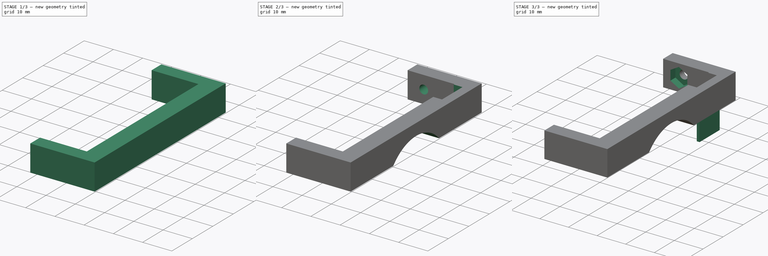
[diagram: build sequence overview — one tinted view per stage of 3, left to right]
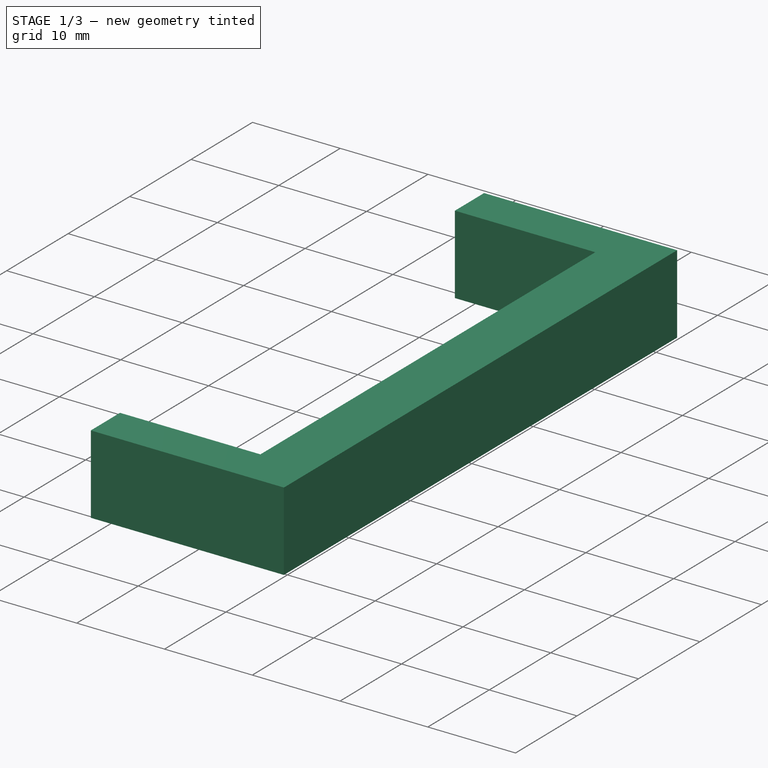
[diagram: stage 1 of 3 — iso view after this stage's code; geometry added in this stage tinted green]
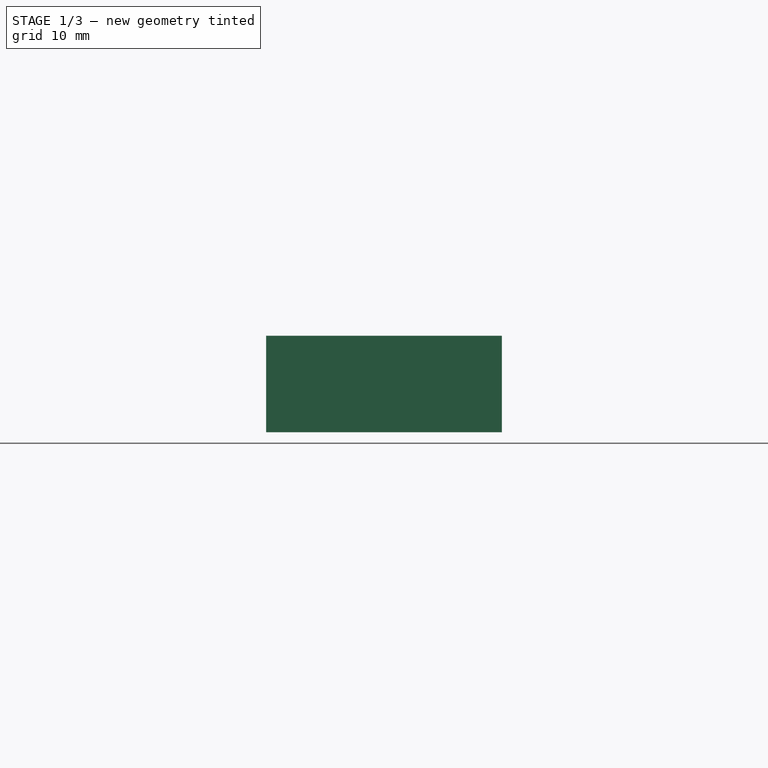
[diagram: stage 1 of 3 — front view after this stage's code; geometry added in this stage tinted green]
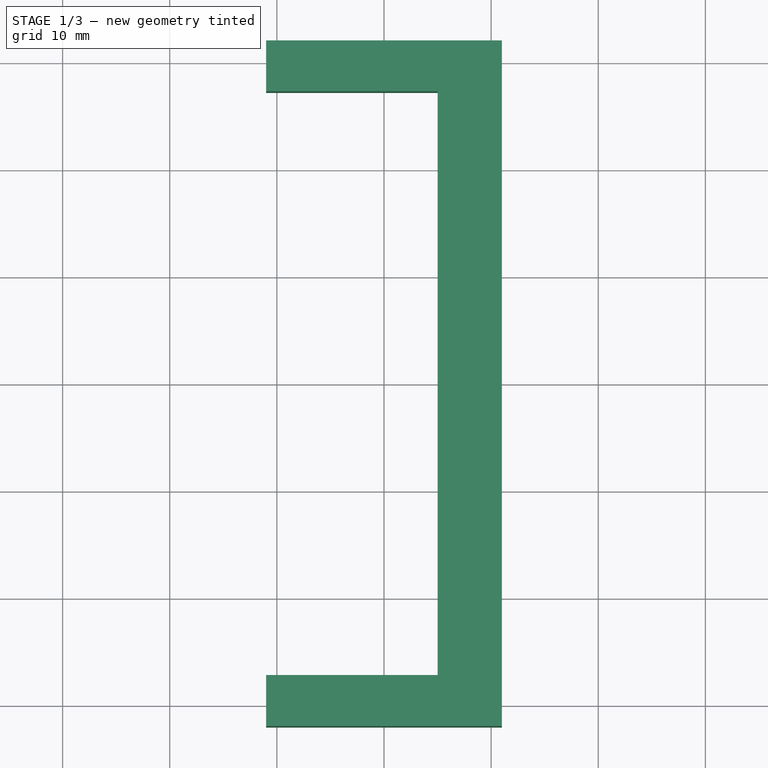
[diagram: stage 1 of 3 — top view after this stage's code; geometry added in this stage tinted green]
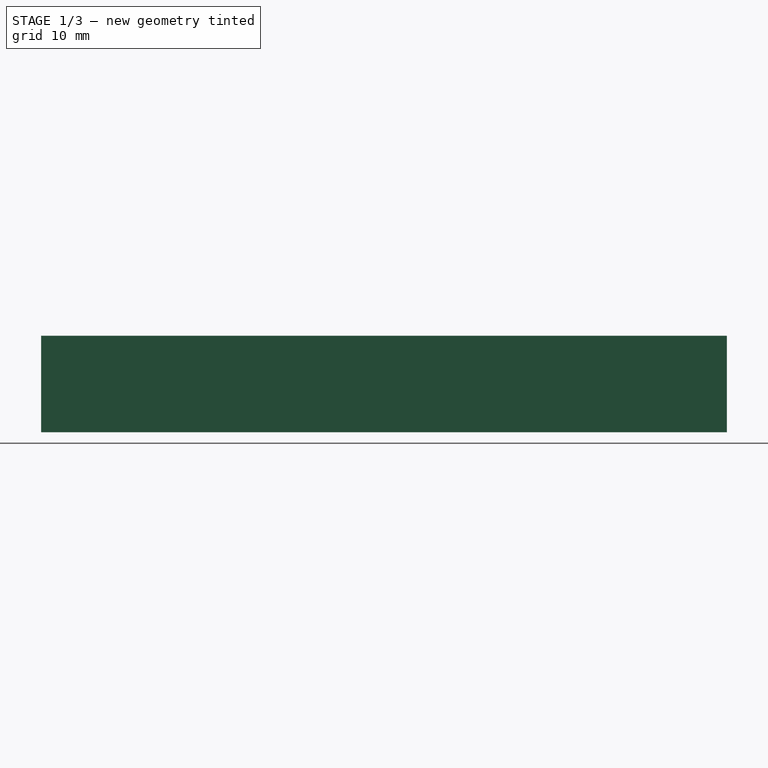
[diagram: stage 1 of 3 — right view after this stage's code; geometry added in this stage tinted green]
FCSTD DOCUMENT  (FreeCAD 0.14R3702 (Git))
Label: Cameraholder_v4
License: CC-BY 3.0
LicenseURL: http://creativecommons.org/licenses/by/3.0/
objects: Sketcher::SketchObject×8, PartDesign::Pocket×5, PartDesign::Pad×2
note: 22 computed .brp shape members not serialized (recipe doc carries the construction recipe); baked Part::Feature solids carry a one-line shape summary decoded from their .brp

FEATURE [Sketcher::SketchObject] Sketch
  sketch-geometry (4):
    g0: LineSegment StartX=-11 StartY=32 StartZ=0 EndX=11 EndY=32 EndZ=0
    g1: LineSegment StartX=11 StartY=32 StartZ=0 EndX=11 EndY=-32 EndZ=0
    g2: LineSegment StartX=11 StartY=-32 StartZ=0 EndX=-11 EndY=-32 EndZ=0
    g3: LineSegment StartX=-11 StartY=-32 StartZ=0 EndX=-11 EndY=32 EndZ=0
  constraints (12):
    c: Coincident(g0,g1)
    c: Coincident(g1,g2)
    c: Coincident(g2,g3)
    c: Coincident(g3,g0)
    c: Horizontal(g0)
    c: Horizontal(g2)
    c: Vertical(g1)
    c: Vertical(g3)
    c: DistanceY(g3) = 64
    c: DistanceX(g0) = 22
    c: Symmetric(g0,g2,g-1)
    c: DistanceX(g-1,g0) = -11
FEATURE [PartDesign::Pad] Pad
  Length = 9
  Length2 = 100
  Sketch = -> Sketch
  Type = 0
FEATURE [Sketcher::SketchObject] Sketch001
  Placement = pos=(0,0,9) rot=(0,0,1;0rad)
  Support = -> Pad [Face6]
  sketch-geometry (4):
    g0: LineSegment StartX=-11 StartY=27.25 StartZ=0 EndX=5 EndY=27.25 EndZ=0
    g1: LineSegment StartX=5 StartY=27.25 StartZ=0 EndX=5 EndY=-27.25 EndZ=0
    g2: LineSegment StartX=5 StartY=-27.25 StartZ=0 EndX=-11 EndY=-27.25 EndZ=0
    g3: LineSegment StartX=-11 StartY=-27.25 StartZ=0 EndX=-11 EndY=27.25 EndZ=0
  constraints (12):
    c: Coincident(g0,g1)
    c: Coincident(g1,g2)
    c: Coincident(g2,g3)
    c: Coincident(g3,g0)
    c: Horizontal(g0)
    c: Horizontal(g2)
    c: Vertical(g1)
    c: Vertical(g3)
    c: Symmetric(g2,g0,g-1)
    c: DistanceX(g-1,g0) = -11
    c: DistanceX(g0) = 16
    c: DistanceY(g3) = 54.5
FEATURE [PartDesign::Pocket] Pocket
  Length = 5
  Sketch = -> Sketch001
  Type = 1
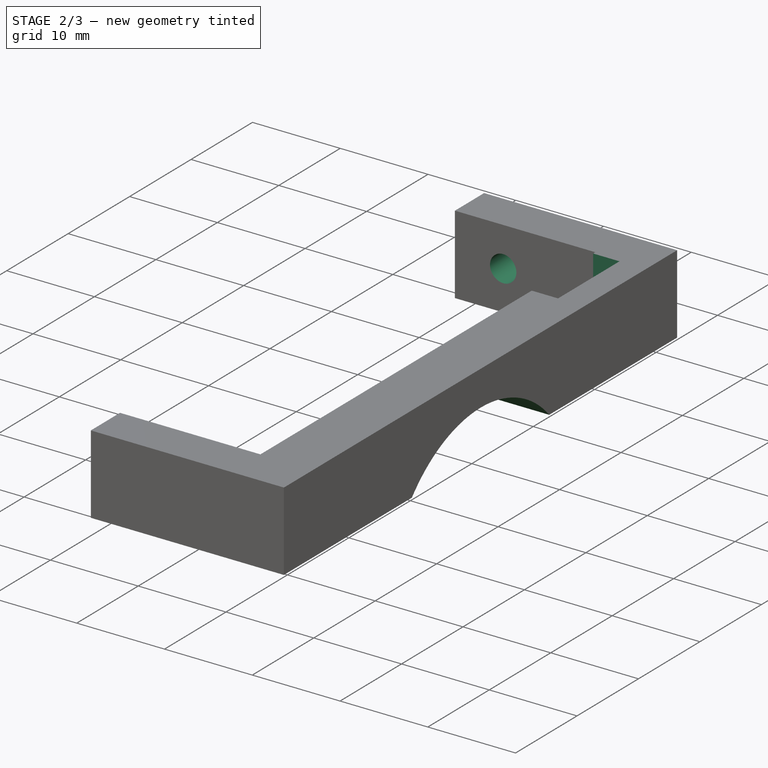
[diagram: stage 2 of 3 — iso view after this stage's code; geometry added in this stage tinted green]
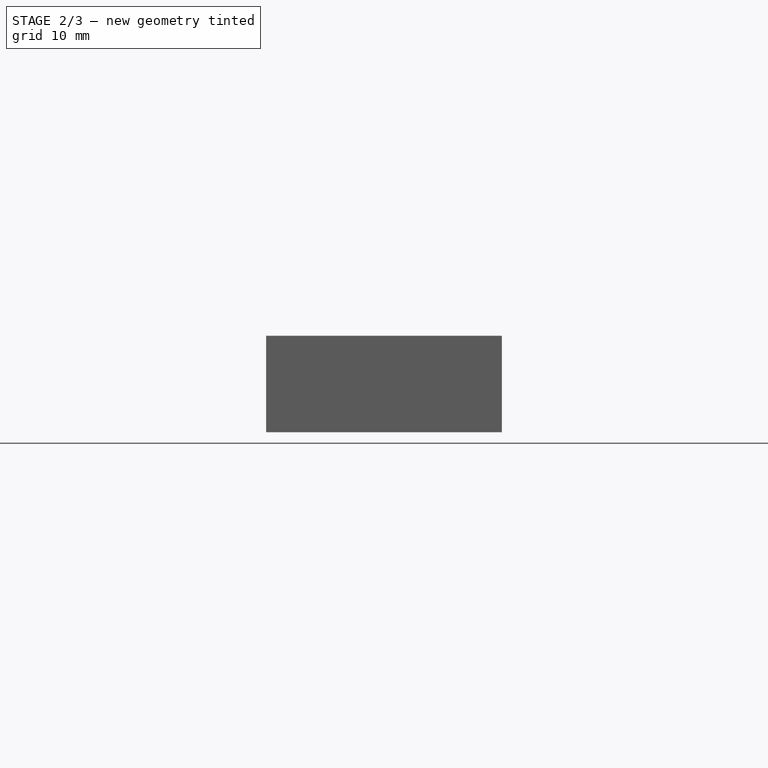
[diagram: stage 2 of 3 — front view after this stage's code; geometry added in this stage tinted green]
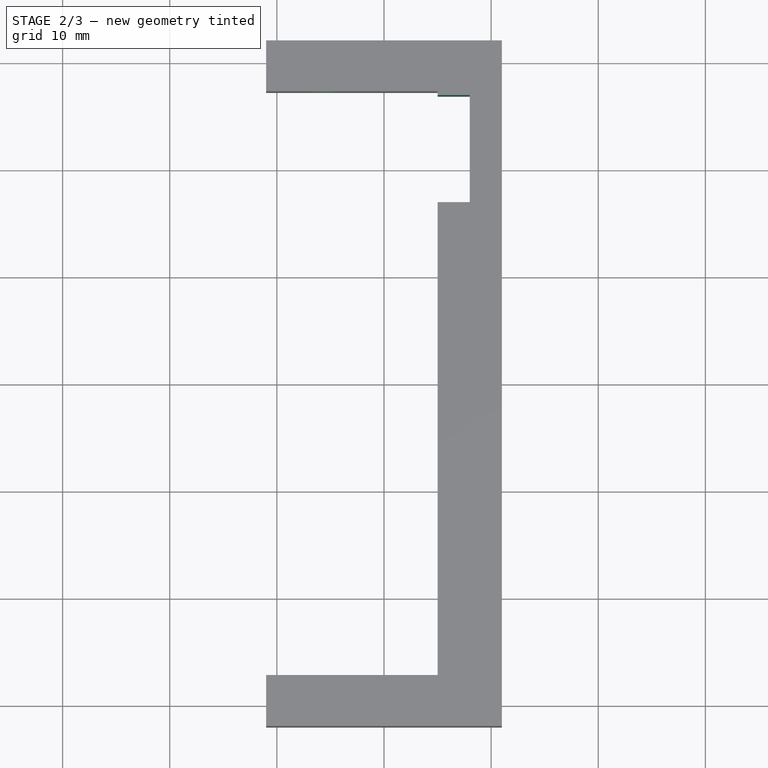
[diagram: stage 2 of 3 — top view after this stage's code; geometry added in this stage tinted green]
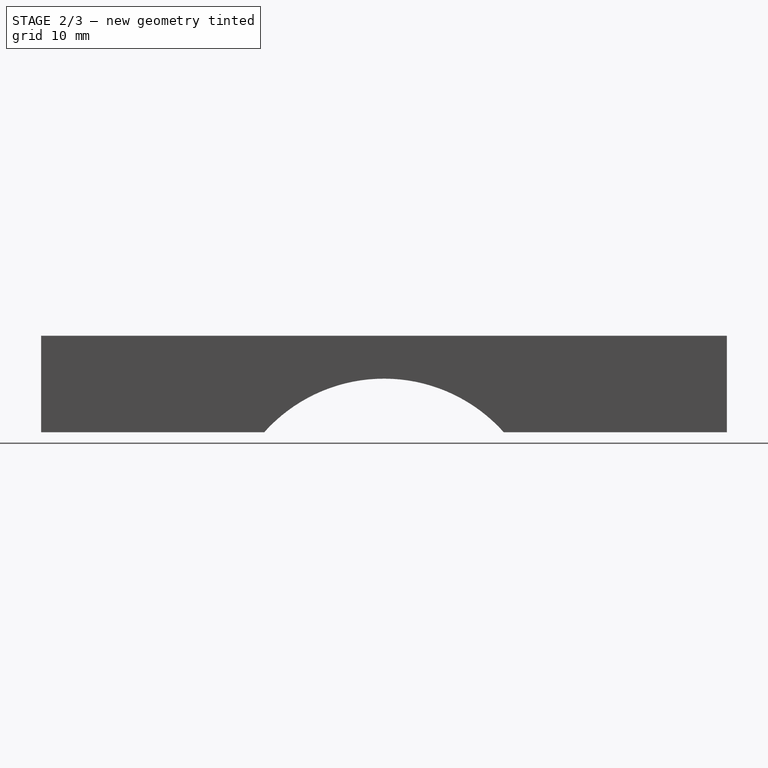
[diagram: stage 2 of 3 — right view after this stage's code; geometry added in this stage tinted green]
FEATURE [Sketcher::SketchObject] Sketch004
  Placement = pos=(0,0,9) rot=(0,0,1;0rad)
  Support = -> Pocket [Face5]
  sketch-geometry (4):
    g0: LineSegment StartX=5 StartY=26.9 StartZ=0 EndX=8 EndY=26.9 EndZ=0
    g1: LineSegment StartX=8 StartY=26.9 StartZ=0 EndX=8 EndY=16.9 EndZ=0
    g2: LineSegment StartX=8 StartY=16.9 StartZ=0 EndX=5 EndY=16.9 EndZ=0
    g3: LineSegment StartX=5 StartY=16.9 StartZ=0 EndX=5 EndY=26.9 EndZ=0
  constraints (12):
    c: Coincident(g0,g1)
    c: Coincident(g1,g2)
    c: Coincident(g2,g3)
    c: Coincident(g3,g0)
    c: Horizontal(g0)
    c: Horizontal(g2)
    c: Vertical(g1)
    c: Vertical(g3)
    c: DistanceX(g-1,g2) = 5
    c: DistanceX(g2) = -3
    c: DistanceY(g1) = -10
    c: DistanceY(g-1,g0) = 26.9
FEATURE [PartDesign::Pocket] Pocket001
  Length = 5
  Sketch = -> Sketch004
  Type = 1
FEATURE [Sketcher::SketchObject] Sketch003
  Placement = pos=(11,0,0) rot=(0.57735,0.57735,0.57735;2.0944rad)
  Support = -> Pocket001 [Face3]
  sketch-geometry (1):
    g0: Circle CenterX=0 CenterY=-10 CenterZ=0 NormalX=0 NormalY=0 NormalZ=1 Radius=15
  constraints (3):
    c: DistanceX(g-1,g0) = 0
    c: Radius(g0) = 15
    c: DistanceY(g-1,g0) = -10
FEATURE [PartDesign::Pocket] Pocket002
  Length = 5
  Sketch = -> Sketch003
  Type = 1
FEATURE [Sketcher::SketchObject] Sketch005
  Placement = pos=(0,0,0) rot=(1,0,0;3.14159rad)
  Support = -> Pocket002 [Face4]
FEATURE [Sketcher::SketchObject] Sketch006
  Placement = pos=(0,32,0) rot=(0,0.707107,0.707107;3.14159rad)
  Support = -> Pocket002 [Face1]
  sketch-geometry (1):
    g0: Circle CenterX=5.5 CenterY=4.5 CenterZ=0 NormalX=0 NormalY=0 NormalZ=1 Radius=1.5
  constraints (3):
    c: Radius(g0) = 1.5
    c: DistanceX(g-1,g0) = 5.5
    c: DistanceY(g-1,g0) = 4.5
FEATURE [PartDesign::Pocket] Pocket003
  Length = 5
  Sketch = -> Sketch006
  Type = 2
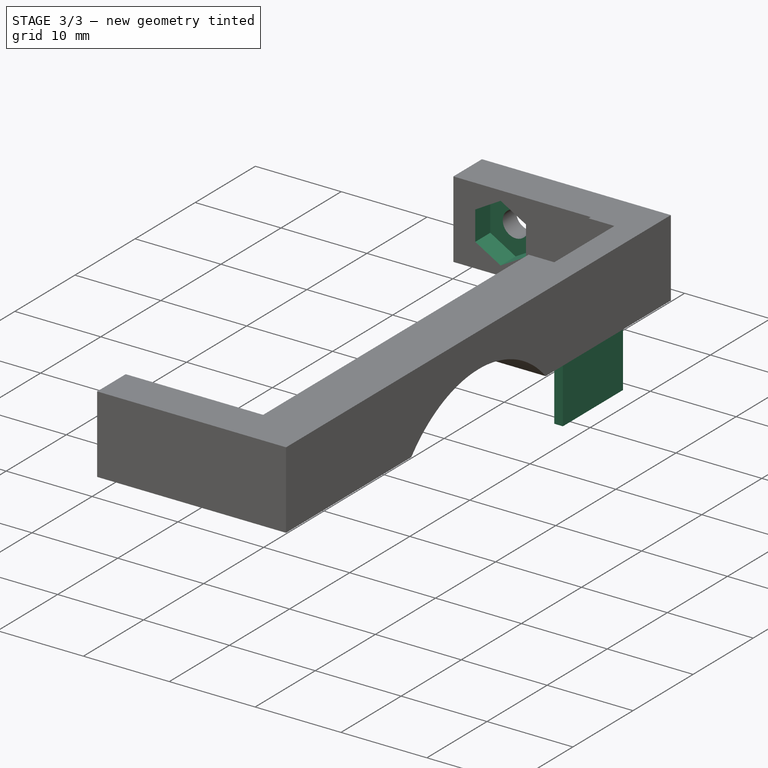
[diagram: stage 3 of 3 — iso view after this stage's code; geometry added in this stage tinted green]
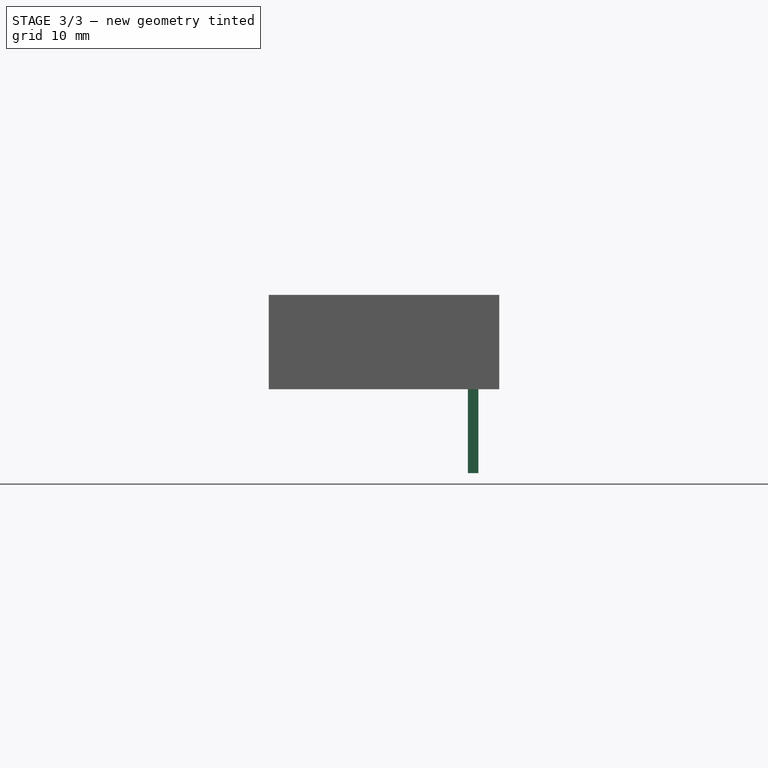
[diagram: stage 3 of 3 — front view after this stage's code; geometry added in this stage tinted green]
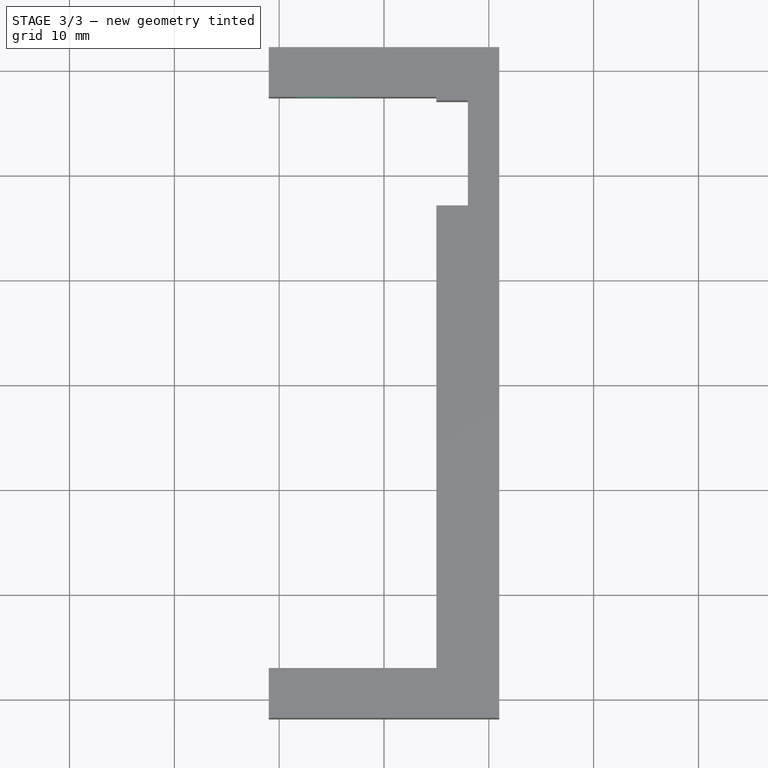
[diagram: stage 3 of 3 — top view after this stage's code; geometry added in this stage tinted green]
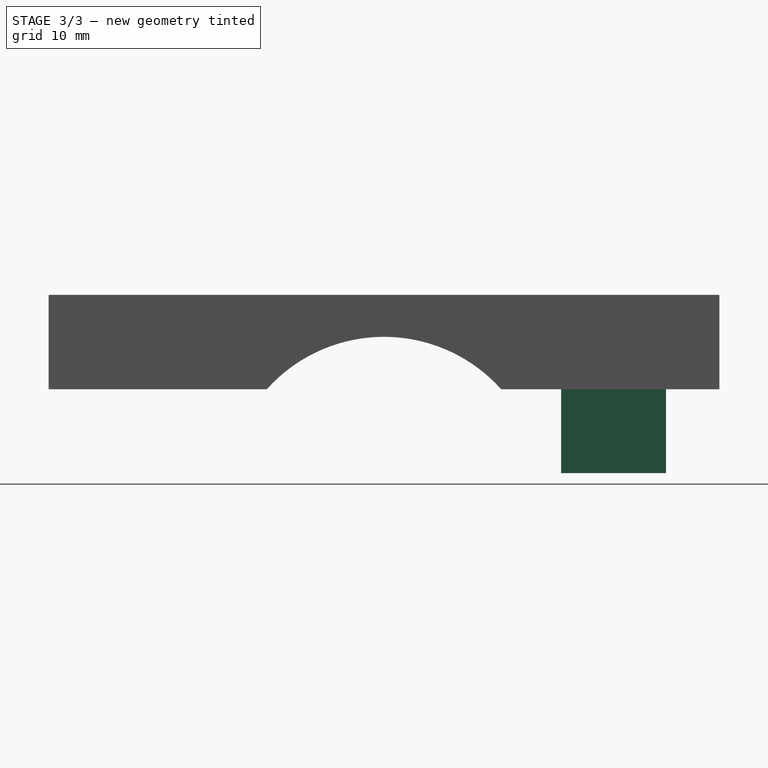
[diagram: stage 3 of 3 — right view after this stage's code; geometry added in this stage tinted green]
FEATURE [Sketcher::SketchObject] Sketch008  label="Hexagon"
  Placement = pos=(0,27.25,0) rot=(1,0,0;1.5708rad)
  Support = -> Pocket003 [Face7]
  sketch-geometry (7):
    g0: LineSegment StartX=-8.45 StartY=6.20318 StartZ=0 EndX=-5.5 EndY=7.90637 EndZ=0
    g1: LineSegment StartX=-5.5 StartY=7.90637 StartZ=0 EndX=-2.55 EndY=6.20318 EndZ=0
    g2: LineSegment StartX=-2.55 StartY=6.20318 StartZ=0 EndX=-2.55 EndY=2.79682 EndZ=0
    g3: LineSegment StartX=-2.55 StartY=2.79682 StartZ=0 EndX=-5.5 EndY=1.09363 EndZ=0
    g4: LineSegment StartX=-5.5 StartY=1.09363 StartZ=0 EndX=-8.45 EndY=2.79682 EndZ=0
    g5: LineSegment StartX=-8.45 StartY=2.79682 StartZ=0 EndX=-8.45 EndY=6.20318 EndZ=0
    g6: Circle [constr] CenterX=-5.5 CenterY=4.5 CenterZ=0 NormalX=0 NormalY=0 NormalZ=1 Radius=3.40637
  constraints (21):
    c: Coincident(g0,g1)
    c: Coincident(g1,g2)
    c: Coincident(g2,g3)
    c: Coincident(g3,g4)
    c: Coincident(g4,g5)
    c: Coincident(g5,g0)
    c: Equal(g5,g0)
    c: Equal(g0,g4)
    c: Equal(g4,g3)
    c: Equal(g3,g2)
    c: Equal(g2,g1)
    c: PointOnObject(g0,g6)
    c: PointOnObject(g2,g6)
    c: PointOnObject(g1,g6)
    c: PointOnObject(g4,g6)
    c: PointOnObject(g0,g6)
    c: Vertical(g5)
    c: Vertical(g2)
    c: DistanceX(g0,g1) = 5.9
    c: DistanceX(g-1,g0) = -5.5
    c: DistanceY(g-1,g6) = 4.5
FEATURE [PartDesign::Pocket] Pocket004
  Length = 2.5
  Sketch = -> Sketch008
  Type = 0
FEATURE [Sketcher::SketchObject] Sketch007
  Placement = pos=(0,0,0) rot=(1,0,0;3.14159rad)
  Support = -> Pocket004 [Face3]
  sketch-geometry (4):
    g0: LineSegment StartX=9 StartY=-16.9 StartZ=0 EndX=8 EndY=-16.9 EndZ=0
    g1: LineSegment StartX=8 StartY=-16.9 StartZ=0 EndX=8 EndY=-26.9 EndZ=0
    g2: LineSegment StartX=8 StartY=-26.9 StartZ=0 EndX=9 EndY=-26.9 EndZ=0
    g3: LineSegment StartX=9 StartY=-26.9 StartZ=0 EndX=9 EndY=-16.9 EndZ=0
  constraints (14):
    c: Coincident(g0,g1)
    c: Coincident(g1,g2)
    c: Coincident(g2,g3)
    c: Coincident(g3,g0)
    c: Horizontal(g0)
    c: Horizontal(g2)
    c: Vertical(g1)
    c: Vertical(g3)
    c: DistanceX(g0,g0) = 1
    c: Equal(g2,g0)
    c: Equal(g1,g3)
    c: DistanceY(g0,g1) = -10
    c: DistanceX(g-1,g0) = 8
    c: DistanceY(g-1,g0) = -16.9
FEATURE [PartDesign::Pad] Pad001
  Length = 8
  Length2 = 100
  Sketch = -> Sketch007
  Type = 0
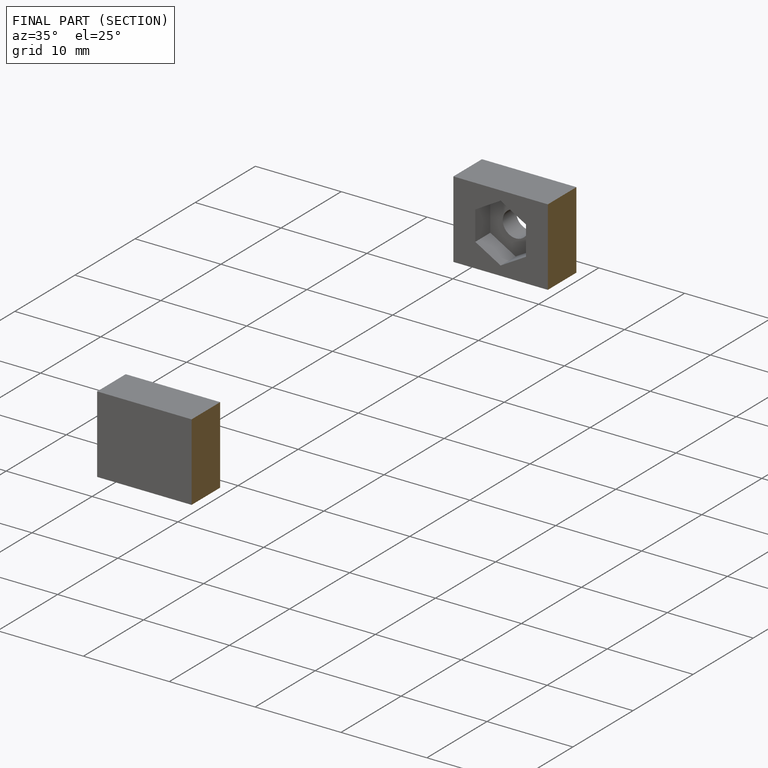
[diagram: finished part — half-section view (interior)]
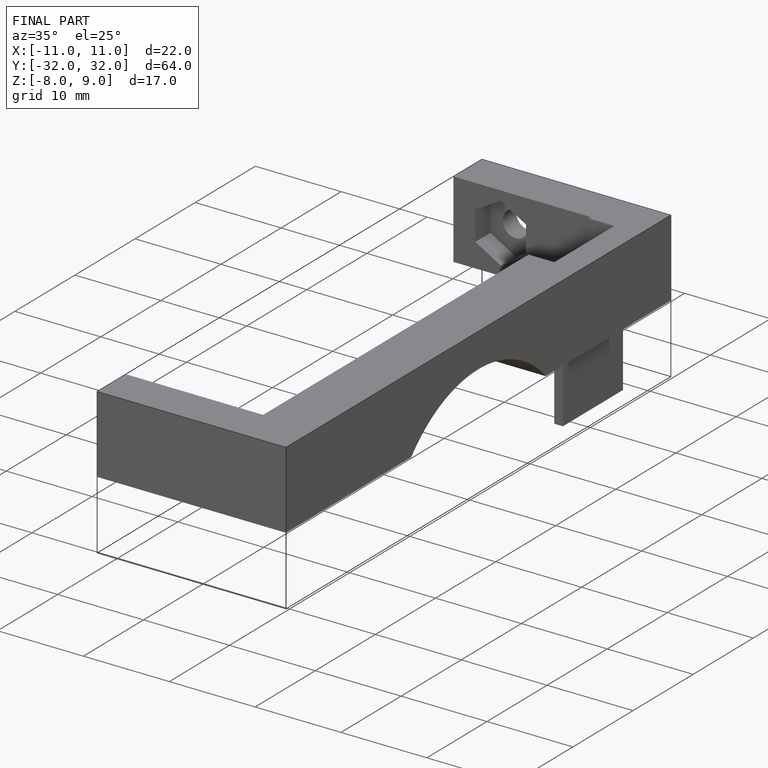
[diagram: finished part — iso view with bounding-box wireframe]
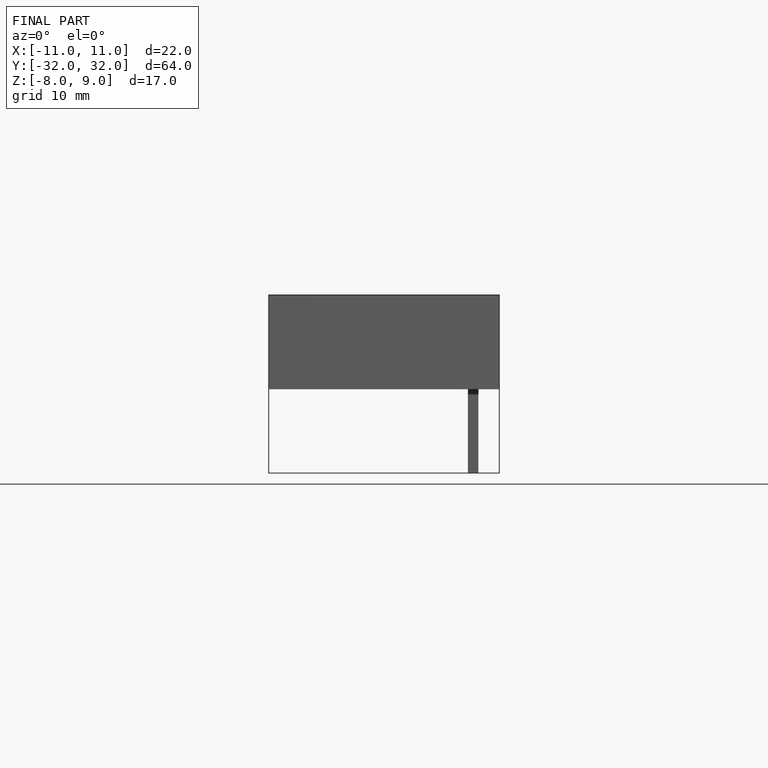
[diagram: finished part — front view with bounding-box wireframe]
